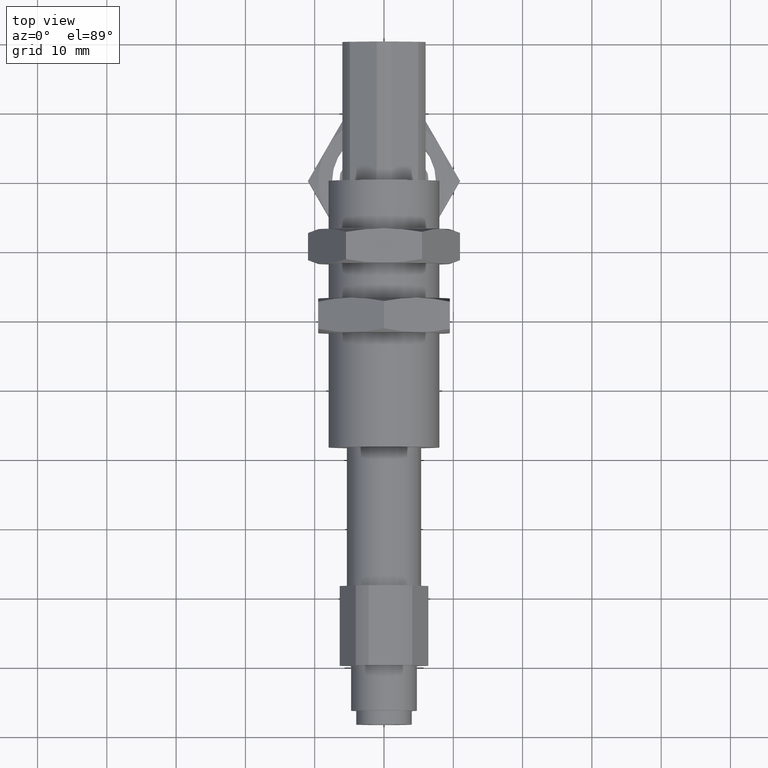
[diagram: clean part render]
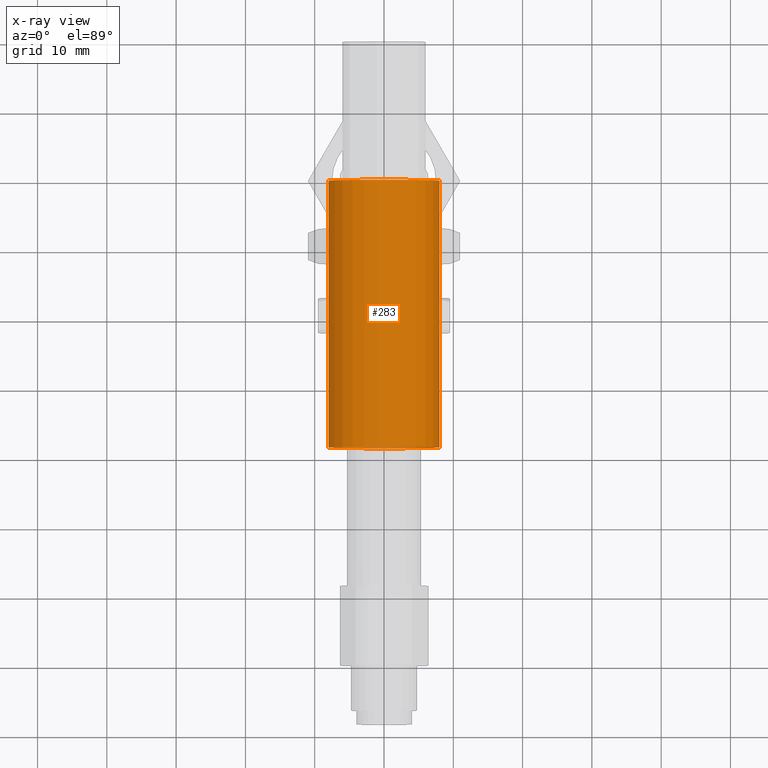
[diagram: x-ray — body ghosted, one internal face saturated and labeled with its STEP entity id]
A machine part, top view, then the same camera in x-ray: the body is ghosted and one INTERNAL B-rep face — a face not visible from any outside direction — is saturated and labeled: STEP entity #283.
In plain terms, the highlighted cylindrical surface (bore or boss wall) has radius 8 mm, axis along (0, -1, -0).
Its self-contained STEP definition (entity closure, byte-faithful):
#283 = ADVANCED_FACE( 'NONE', ( #441, #442 ), #443, .T. );
#441 = FACE_OUTER_BOUND( '', #598, .T. );
#442 = FACE_OUTER_BOUND( '', #599, .T. );
#443 = CYLINDRICAL_SURFACE( '', #600, 8.00000000000000 );
#598 = EDGE_LOOP( '', ( #963 ) );
#599 = EDGE_LOOP( '', ( #964 ) );
#600 = AXIS2_PLACEMENT_3D( '', #965, #966, #967 );
#963 = ORIENTED_EDGE( '', *, *, #1229, .F. );
#964 = ORIENTED_EDGE( '', *, *, #1230, .T. );
#965 = CARTESIAN_POINT( '', ( 0.000000000000000, 0.000000000000000, 0.000000000000000 ) );
#966 = DIRECTION( '', ( 1.12644381556935E-016, -1.00000000000000, -0.000000000000000 ) );
#967 = DIRECTION( '', ( -1.00000000000000, -1.12644381556935E-016, 0.000000000000000 ) );
#1229 = EDGE_CURVE( 'NONE', #1439, #1439, #1440, .T. );
#1230 = EDGE_CURVE( 'NONE', #1441, #1441, #1442, .T. );
#1439 = VERTEX_POINT( '', #1807 );
#1440 = CIRCLE( '', #1808, 8.00000000000000 );
#1441 = VERTEX_POINT( '', #1809 );
#1442 = CIRCLE( '', #1810, 8.00000000000000 );
#1807 = CARTESIAN_POINT( '', ( -8.00000000000000, 7.70371977754894E-031, 0.000000000000000 ) );
#1808 = AXIS2_PLACEMENT_3D( '', #2033, #2034, #2035 );
#1809 = CARTESIAN_POINT( '', ( -8.00000000000000, -38.5000000000000, 0.000000000000000 ) );
#1810 = AXIS2_PLACEMENT_3D( '', #2036, #2037, #2038 );
#2033 = CARTESIAN_POINT( '', ( -1.01510053570756E-031, 9.01155052455484E-016, 0.000000000000000 ) );
#2034 = DIRECTION( '', ( -1.12644381556935E-016, 1.00000000000000, 0.000000000000000 ) );
#2035 = DIRECTION( '', ( -1.00000000000000, -1.12644381556935E-016, 0.000000000000000 ) );
#2036 = CARTESIAN_POINT( '', ( 4.33680868994201E-015, -38.5000000000000, 0.000000000000000 ) );
#2037 = DIRECTION( '', ( 0.000000000000000, 1.00000000000000, 0.000000000000000 ) );
#2038 = DIRECTION( '', ( -1.00000000000000, 0.000000000000000, 0.000000000000000 ) );